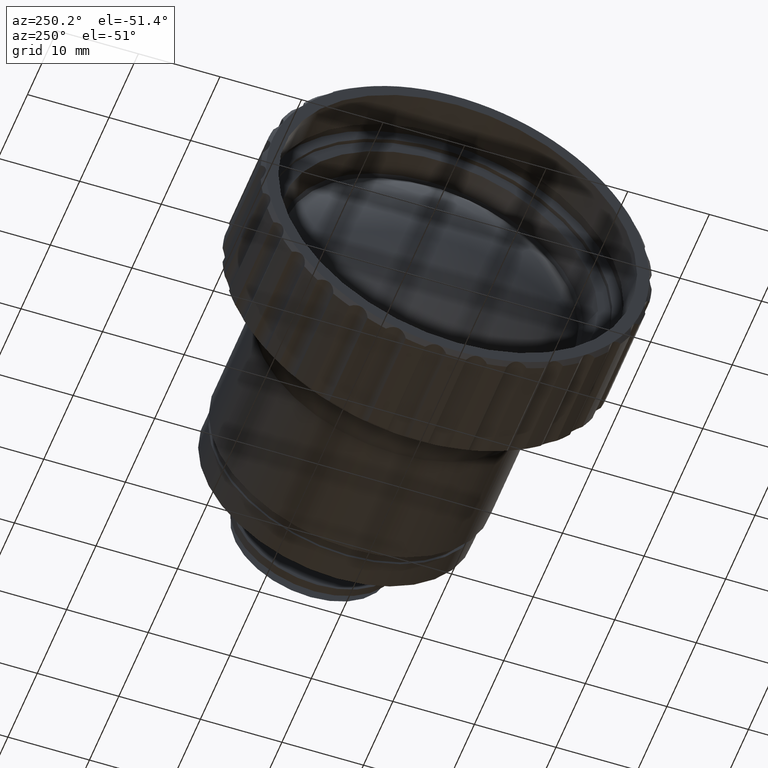
[diagram: clean part render]
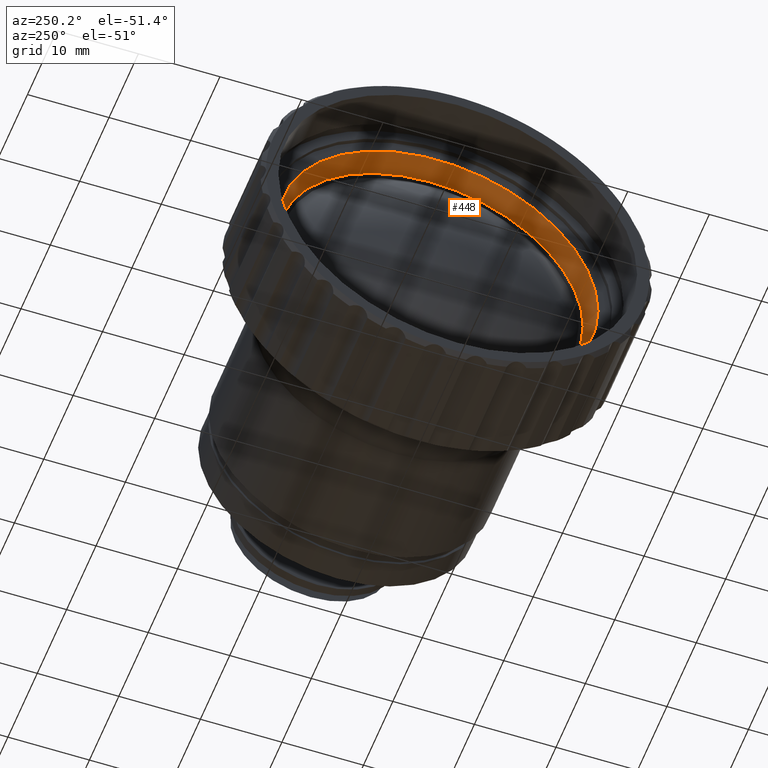
[diagram: same view with one face highlighted and labeled with its STEP entity id]
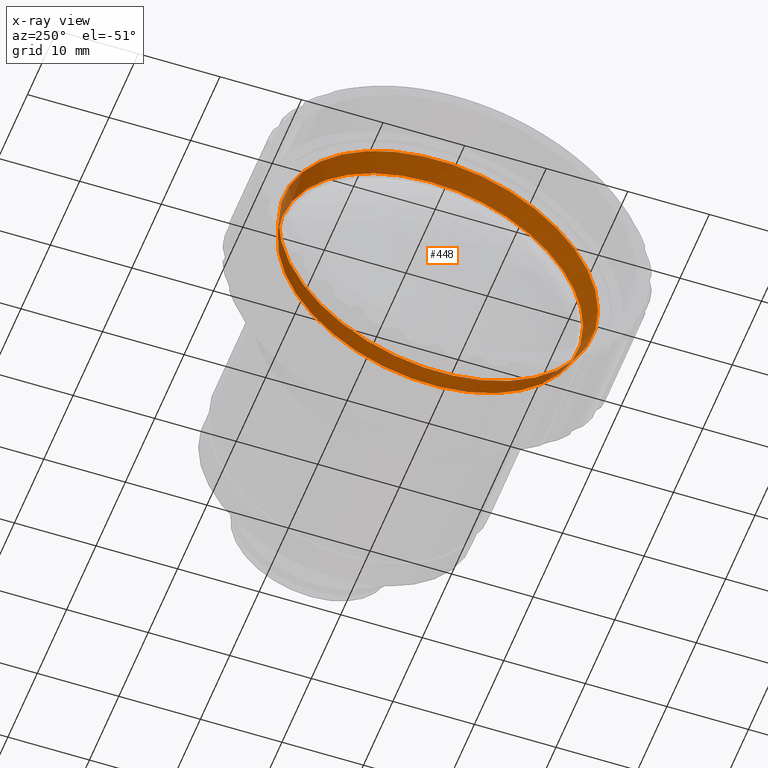
[diagram: x-ray of the same camera — body ghosted, the highlighted face saturated]
A machine part, auxiliary view. The second image highlights one B-rep face of the part: STEP entity #448.
The next image is the same camera in x-ray: the body ghosted, the highlighted face saturated — about 3% of this face is hidden behind the body in this view.
In plain terms, the highlighted conical surface has half-angle 17.365 deg.
Its self-contained STEP definition (entity closure, byte-faithful):
#91 = AXIS2_PLACEMENT_3D ( 'NONE', #4602, #478, #4142 ) ;
#295 = EDGE_LOOP ( 'NONE', ( #2502 ) ) ;
#448 = ADVANCED_FACE ( 'NONE', ( #1793, #3297 ), #661, .F. ) ;
#478 = DIRECTION ( 'NONE',  ( -1.000000000000000000, 0.000000000000000000, 0.000000000000000000 ) ) ;
#581 = CIRCLE ( 'NONE', #3318, 19.58187662549121555 ) ;
#661 = CONICAL_SURFACE ( 'NONE', #3388, 19.58187662549121555, 0.3030703871272456551 ) ;
#1209 = DIRECTION ( 'NONE',  ( 1.000000000000000000, 2.214705348667382066E-17, 0.000000000000000000 ) ) ;
#1325 = VERTEX_POINT ( 'NONE', #2395 ) ;
#1604 = DIRECTION ( 'NONE',  ( 4.429410697334763517E-17, -1.000000000000000000, 0.000000000000000000 ) ) ;
#1793 = FACE_BOUND ( 'NONE', #295, .T. ) ;
#2332 = DIRECTION ( 'NONE',  ( 4.429410697334763517E-17, -1.000000000000000000, 0.000000000000000000 ) ) ;
#2395 = CARTESIAN_POINT ( 'NONE',  ( 6.741150999999995896, -19.58187662549121555, 0.000000000000000000 ) ) ;
#2502 = ORIENTED_EDGE ( 'NONE', *, *, #3711, .F. ) ;
#2644 = ORIENTED_EDGE ( 'NONE', *, *, #3915, .F. ) ;
#3088 = DIRECTION ( 'NONE',  ( -1.000000000000000000, -2.214705348667382066E-17, -0.000000000000000000 ) ) ;
#3297 = FACE_OUTER_BOUND ( 'NONE', #4563, .T. ) ;
#3318 = AXIS2_PLACEMENT_3D ( 'NONE', #3829, #1209, #2332 ) ;
#3388 = AXIS2_PLACEMENT_3D ( 'NONE', #3914, #3088, #1604 ) ;
#3523 = CARTESIAN_POINT ( 'NONE',  ( 9.438564431576486058, 0.000000000000000000, 18.73838560628011507 ) ) ;
#3711 = EDGE_CURVE ( 'NONE', #4205, #4205, #3821, .T. ) ;
#3821 = CIRCLE ( 'NONE', #91, 18.73838560628011507 ) ;
#3829 = CARTESIAN_POINT ( 'NONE',  ( 6.741150999999995008, 1.176243051006720260E-48, 0.000000000000000000 ) ) ;
#3914 = CARTESIAN_POINT ( 'NONE',  ( 6.741150999999995008, 0.000000000000000000, 0.000000000000000000 ) ) ;
#3915 = EDGE_CURVE ( 'NONE', #1325, #1325, #581, .T. ) ;
#4142 = DIRECTION ( 'NONE',  ( 0.000000000000000000, 0.000000000000000000, 1.000000000000000000 ) ) ;
#4205 = VERTEX_POINT ( 'NONE', #3523 ) ;
#4563 = EDGE_LOOP ( 'NONE', ( #2644 ) ) ;
#4602 = CARTESIAN_POINT ( 'NONE',  ( 9.438564431576486058, 0.000000000000000000, 0.000000000000000000 ) ) ;